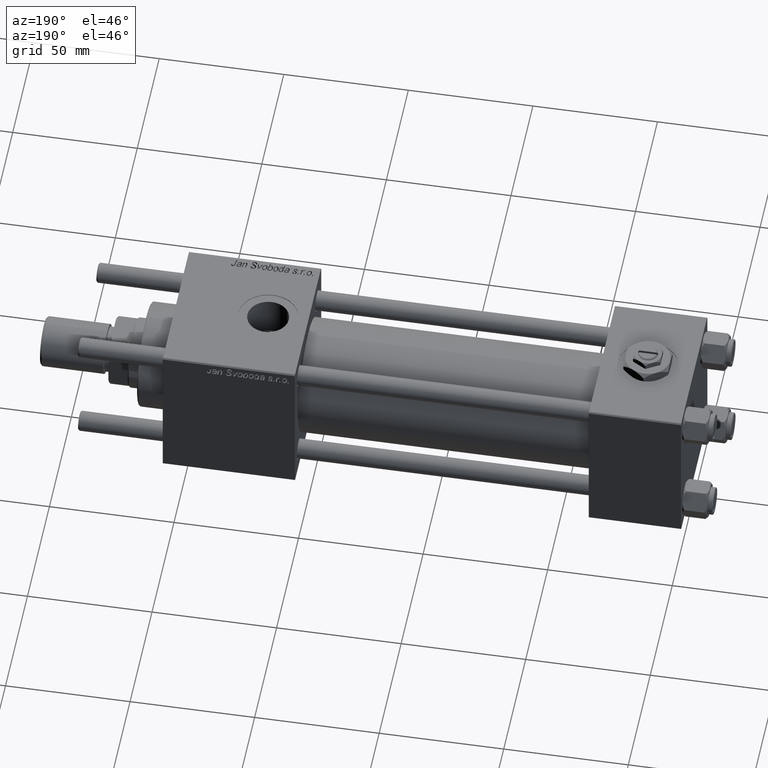
[diagram: clean part render]
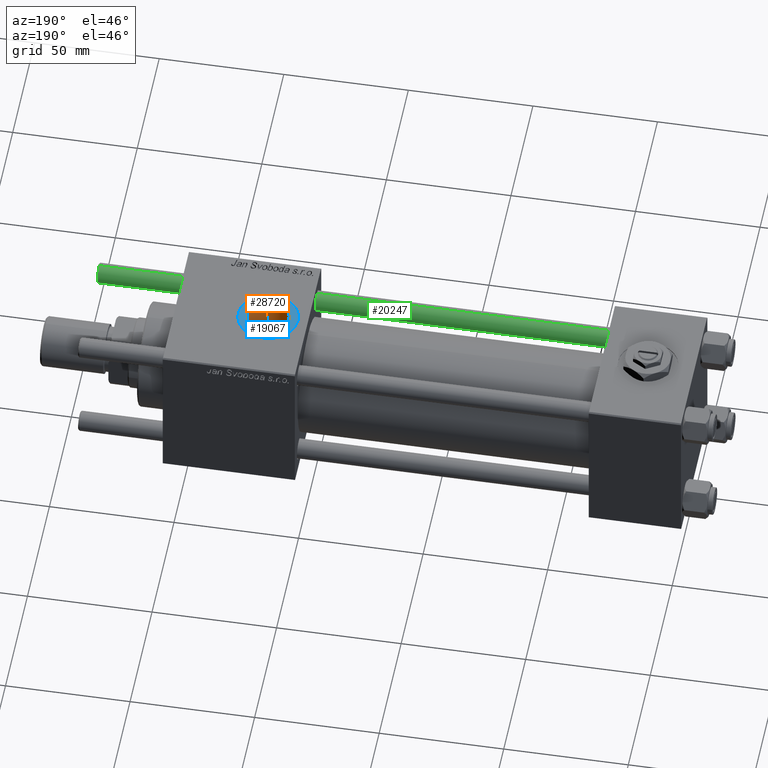
[diagram: same view with three faces highlighted in distinct colors, each labeled with its STEP entity id]
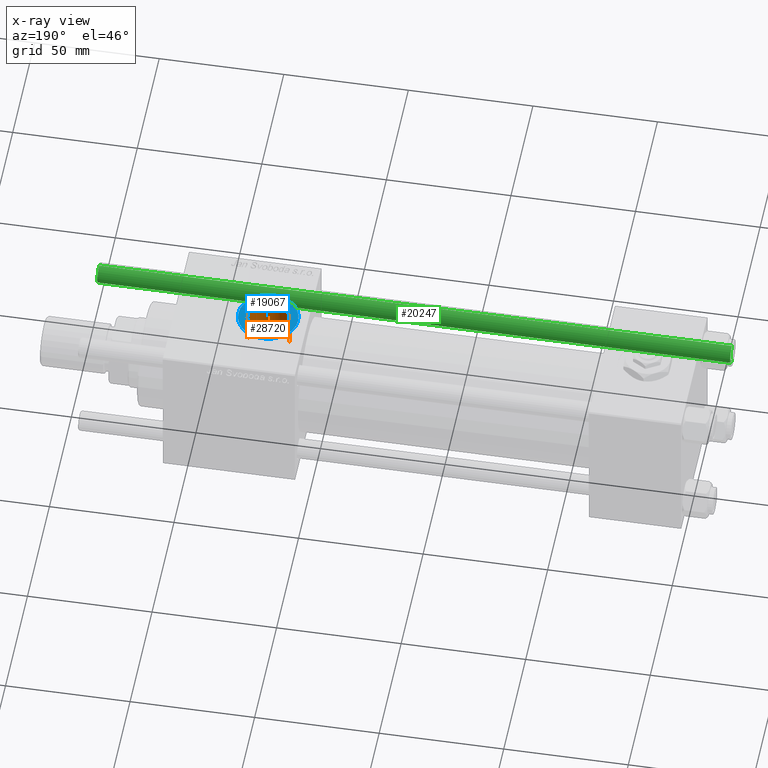
[diagram: x-ray of the same camera — body ghosted, the three highlighted faces saturated]
A machine part, auxiliary view with three faces highlighted in distinct colors.
The next image is the same camera in x-ray (body ghosted, the three faces saturated) — at least one of them is partly hidden behind the body in this view.
Their STEP definitions:

[orange] entity #28720 — the highlighted cylindrical surface (edge-blend (fillet) strip) has radius 8.33 mm, axis along (0, 0, -1).
#763 = EDGE_CURVE ( 'NONE', #18069, #15996, #35019, .T. ) ;
#1313 = EDGE_CURVE ( 'NONE', #13149, #13876, #21421, .T. ) ;
#1381 = CARTESIAN_POINT ( 'NONE',  ( 165.1064272110298816, -5.898864207807588578, 14.33631558793831928 ) ) ;
#1679 = CARTESIAN_POINT ( 'NONE',  ( 163.7356139241942401, -4.094008462183722941, 14.95330218343579709 ) ) ;
#2582 = CARTESIAN_POINT ( 'NONE',  ( 162.8089720379881555, -1.564748737126392397, 15.42568822226018810 ) ) ;
#3598 = CARTESIAN_POINT ( 'NONE',  ( 178.7215032992639578, -3.145651711574434461, 15.18130506059518581 ) ) ;
#3682 = ORIENTED_EDGE ( 'NONE', *, *, #763, .T. ) ;
#4117 = DIRECTION ( 'NONE',  ( 0.000000000000000000, 0.000000000000000000, -1.000000000000000000 ) ) ;
#4184 = CARTESIAN_POINT ( 'NONE',  ( 175.3773959923153427, -7.095733675622464709, 13.78217589145791599 ) ) ;
#4963 = CARTESIAN_POINT ( 'NONE',  ( 170.9999999999999716, -3.469446951953613794E-15, 13.59999999999999076 ) ) ;
#5894 = CARTESIAN_POINT ( 'NONE',  ( 165.9411433775952673, -6.660665606237817116, 14.00684504084868109 ) ) ;
#6303 = CARTESIAN_POINT ( 'NONE',  ( 179.2999999999999829, -0.7063285354563793028, 22.48891060056044822 ) ) ;
#6874 = CARTESIAN_POINT ( 'NONE',  ( 179.3299999999999841, 2.755455270027974659E-15, 22.50000000000000355 ) ) ;
#6912 = B_SPLINE_CURVE_WITH_KNOTS ( 'NONE', 3,
 ( #10812, #29114, #47419, #6303 ),
 .UNSPECIFIED., .F., .F.,
 ( 4, 4 ),
 ( 0.0007063285354563697722, 0.001412657070912751688 ),
 .UNSPECIFIED. ) ;
#8626 = FACE_OUTER_BOUND ( 'NONE', #59013, .T. ) ;
#8693 = CARTESIAN_POINT ( 'NONE',  ( 175.9563515716284314, -6.704148802593592471, 13.97684504926377791 ) ) ;
#10398 = CARTESIAN_POINT ( 'NONE',  ( 167.2451498032544634, -7.435724578008537478, 13.59999999999999076 ) ) ;
#10812 = CARTESIAN_POINT ( 'NONE',  ( 179.3299999999999841, 2.755455270027974659E-15, 22.50000000000000355 ) ) ;
#11345 = AXIS2_PLACEMENT_3D ( 'NONE', #4963, #50876, #19656 ) ;
#11403 = CARTESIAN_POINT ( 'NONE',  ( 179.3299999999999841, -2.449316168263869821E-15, 29.79999999999999716 ) ) ;
#11814 = AXIS2_PLACEMENT_3D ( 'NONE', #35283, #30184, #52976 ) ;
#11841 = CARTESIAN_POINT ( 'NONE',  ( 162.6699999999999875, -3.469446951953613794E-15, 52.79999999999999716 ) ) ;
#12482 = CARTESIAN_POINT ( 'NONE',  ( 162.8906515532532353, -1.943315834972986433, 15.38227098439063845 ) ) ;
#12606 = EDGE_CURVE ( 'NONE', #13876, #57425, #39157, .T. ) ;
#13149 = VERTEX_POINT ( 'NONE', #11403 ) ;
#13834 = LINE ( 'NONE', #39306, #23711 ) ;
#13876 = VERTEX_POINT ( 'NONE', #21088 ) ;
#14393 = ORIENTED_EDGE ( 'NONE', *, *, #45615, .T. ) ;
#15156 = CIRCLE ( 'NONE', #11345, 8.330000000000003624 ) ;
#15205 = CARTESIAN_POINT ( 'NONE',  ( 164.8421395764249553, -5.622509492967806999, 14.44759832893447715 ) ) ;
#15798 = CARTESIAN_POINT ( 'NONE',  ( 162.6699999999999307, -0.3932737753490411214, 15.50000000000000000 ) ) ;
#15996 = VERTEX_POINT ( 'NONE', #27949 ) ;
#16242 = ORIENTED_EDGE ( 'NONE', *, *, #1313, .F. ) ;
#17413 = CARTESIAN_POINT ( 'NONE',  ( 179.2379181272461039, -1.435846766692447929, 15.45061967576079809 ) ) ;
#17995 = CARTESIAN_POINT ( 'NONE',  ( 177.6814859054846067, -4.986894924185134137, 14.67899340481596582 ) ) ;
#18069 = VERTEX_POINT ( 'NONE', #40026 ) ;
#19656 = DIRECTION ( 'NONE',  ( 1.000000000000000000, 0.000000000000000000, 0.000000000000000000 ) ) ;
#20257 = VERTEX_POINT ( 'NONE', #42424 ) ;
#20283 = CARTESIAN_POINT ( 'NONE',  ( 162.6985123997139908, -0.7916320528489063646, 15.48462509825850653 ) ) ;
#21088 = CARTESIAN_POINT ( 'NONE',  ( 162.6699999999999875, -3.469446951953613794E-15, 29.79999999999999716 ) ) ;
#21421 = CIRCLE ( 'NONE', #11814, 8.330000000000003624 ) ;
#21614 = CARTESIAN_POINT ( 'NONE',  ( 176.7527035097906776, -6.034536163537520537, 14.27924648151578069 ) ) ;
#23711 = VECTOR ( 'NONE', #43205, 1000.000000000000000 ) ;
#24529 = AXIS2_PLACEMENT_3D ( 'NONE', #45238, #4117, #36524 ) ;
#26405 = CARTESIAN_POINT ( 'NONE',  ( 179.0832175232424675, -2.135847849507347185, 15.36739229984356037 ) ) ;
#26841 = B_SPLINE_CURVE_WITH_KNOTS ( 'NONE', 3,
 ( #10398, #28707, #5894, #1381, #15205, #33502, #51794, #1679, #38298, #34398, #53289, #12482, #2582, #20283, #15798, #52386 ),
 .UNSPECIFIED., .F., .F.,
 ( 4, 2, 2, 2, 2, 2, 2, 4 ),
 ( 3.218601655210948285E-17, 0.002343612196725074290, 0.003515418295087595173, 0.004687224393450115621, 0.005859030491812635202, 0.007030836590175156518, 0.008202642688537676099, 0.009374448786900198283 ),
 .UNSPECIFIED. ) ;
#26926 = CYLINDRICAL_SURFACE ( 'NONE', #24529, 8.330000000000003624 ) ;
#27949 = CARTESIAN_POINT ( 'NONE',  ( 174.7548501967455081, -7.435724578008537478, 13.59999999999999076 ) ) ;
#28623 = VERTEX_POINT ( 'NONE', #43751 ) ;
#28707 = CARTESIAN_POINT ( 'NONE',  ( 166.5580543014319517, -7.088758972554064286, 13.78970152060304066 ) ) ;
#28720 = ADVANCED_FACE ( 'NONE', ( #8626 ), #26926, .F. ) ;
#29114 = CARTESIAN_POINT ( 'NONE',  ( 179.3299999999999841, -0.2354428451521246024, 22.50000000000000355 ) ) ;
#30184 = DIRECTION ( 'NONE',  ( -0.000000000000000000, -0.000000000000000000, -1.000000000000000000 ) ) ;
#30622 = CARTESIAN_POINT ( 'NONE',  ( 176.2310764146981512, -6.491922975836087240, 14.07719584522196321 ) ) ;
#31057 = ORIENTED_EDGE ( 'NONE', *, *, #48412, .T. ) ;
#31208 = CARTESIAN_POINT ( 'NONE',  ( 174.7548501967455081, -7.435724578008537478, 13.59999999999999076 ) ) ;
#32147 = LINE ( 'NONE', #42310, #56257 ) ;
#32158 = ORIENTED_EDGE ( 'NONE', *, *, #44593, .T. ) ;
#33502 = CARTESIAN_POINT ( 'NONE',  ( 164.3580999100944382, -5.041529647880452991, 14.66044642165735468 ) ) ;
#34398 = CARTESIAN_POINT ( 'NONE',  ( 163.2388751121312396, -3.050237885181524611, 15.20123122413416006 ) ) ;
#35019 = B_SPLINE_CURVE_WITH_KNOTS ( 'NONE', 3,
 ( #45008, #17413, #26405, #3598, #44422, #41084, #59084, #17995, #39922, #58218, #21614, #30622, #8693, #4184, #35420, #31208 ),
 .UNSPECIFIED., .F., .F.,
 ( 4, 2, 2, 2, 2, 2, 2, 4 ),
 ( 0.000000000000000000, 0.002164281519507940243, 0.003246422279261909280, 0.004328563039015877884, 0.005410703798769845620, 0.006492844558523814223, 0.007574985318277782827, 0.008657126078031750563 ),
 .UNSPECIFIED. ) ;
#35283 = CARTESIAN_POINT ( 'NONE',  ( 170.9999999999999716, -3.469446951953613794E-15, 29.79999999999999716 ) ) ;
#35420 = CARTESIAN_POINT ( 'NONE',  ( 175.0719793388102232, -7.275582495151255102, 13.68755679569671457 ) ) ;
#35733 = EDGE_CURVE ( 'NONE', #20257, #15996, #15156, .T. ) ;
#36524 = DIRECTION ( 'NONE',  ( -1.000000000000000000, 0.000000000000000000, 0.000000000000000000 ) ) ;
#38019 = ORIENTED_EDGE ( 'NONE', *, *, #35733, .F. ) ;
#38298 = CARTESIAN_POINT ( 'NONE',  ( 163.5555123538904922, -3.757474466741723251, 15.04203335714862710 ) ) ;
#39157 = LINE ( 'NONE', #11841, #44270 ) ;
#39306 = CARTESIAN_POINT ( 'NONE',  ( 179.3299999999999841, -2.449316168263869032E-15, 52.79999999999999716 ) ) ;
#39922 = CARTESIAN_POINT ( 'NONE',  ( 177.4654438345357335, -5.264046141786857369, 14.58145607373055164 ) ) ;
#40026 = CARTESIAN_POINT ( 'NONE',  ( 179.2999999999999829, -0.7063285354563793028, 15.48389808801388412 ) ) ;
#41084 = CARTESIAN_POINT ( 'NONE',  ( 178.2557022334253816, -4.107191428842593695, 14.94947048340131346 ) ) ;
#42310 = CARTESIAN_POINT ( 'NONE',  ( 179.2999999999999829, -0.7063285354563793028, 52.79999999999999716 ) ) ;
#42424 = CARTESIAN_POINT ( 'NONE',  ( 167.2451498032544634, -7.435724578008537478, 13.59999999999999076 ) ) ;
#43205 = DIRECTION ( 'NONE',  ( 0.000000000000000000, 0.000000000000000000, -1.000000000000000000 ) ) ;
#43751 = CARTESIAN_POINT ( 'NONE',  ( 179.2999999999999829, -0.7063285354563793028, 22.48891060056044822 ) ) ;
#44226 = ORIENTED_EDGE ( 'NONE', *, *, #12606, .F. ) ;
#44256 = DIRECTION ( 'NONE',  ( 0.000000000000000000, 0.000000000000000000, -1.000000000000000000 ) ) ;
#44270 = VECTOR ( 'NONE', #44256, 1000.000000000000000 ) ;
#44422 = CARTESIAN_POINT ( 'NONE',  ( 178.5780231920916492, -3.476751477085000541, 15.10853693558157040 ) ) ;
#44593 = EDGE_CURVE ( 'NONE', #13149, #48869, #13834, .T. ) ;
#45008 = CARTESIAN_POINT ( 'NONE',  ( 179.2999999999999829, -0.7063285354563793028, 15.48389808801388412 ) ) ;
#45238 = CARTESIAN_POINT ( 'NONE',  ( 170.9999999999999716, -3.469446951953613794E-15, 52.79999999999999716 ) ) ;
#45391 = EDGE_CURVE ( 'NONE', #18069, #28623, #32147, .T. ) ;
#45615 = EDGE_CURVE ( 'NONE', #48869, #28623, #6912, .T. ) ;
#45947 = DIRECTION ( 'NONE',  ( -0.000000000000000000, -0.000000000000000000, 1.000000000000000000 ) ) ;
#47419 = CARTESIAN_POINT ( 'NONE',  ( 179.3200361445782960, -0.4708856903042520914, 22.49630535626710781 ) ) ;
#48412 = EDGE_CURVE ( 'NONE', #20257, #57425, #26841, .T. ) ;
#48869 = VERTEX_POINT ( 'NONE', #6874 ) ;
#50876 = DIRECTION ( 'NONE',  ( 0.000000000000000000, 0.000000000000000000, 1.000000000000000000 ) ) ;
#51794 = CARTESIAN_POINT ( 'NONE',  ( 164.1369027071220614, -4.736043274220088861, 14.76252165391442439 ) ) ;
#52227 = ORIENTED_EDGE ( 'NONE', *, *, #45391, .F. ) ;
#52386 = CARTESIAN_POINT ( 'NONE',  ( 162.6699999999996180, -2.713082222898955649E-14, 15.50000000000020428 ) ) ;
#52976 = DIRECTION ( 'NONE',  ( 1.000000000000000000, 0.000000000000000000, 0.000000000000000000 ) ) ;
#53289 = CARTESIAN_POINT ( 'NONE',  ( 163.1052114789570169, -2.685204437881583583, 15.27024604249924877 ) ) ;
#56257 = VECTOR ( 'NONE', #45947, 1000.000000000000000 ) ;
#57425 = VERTEX_POINT ( 'NONE', #59371 ) ;
#58218 = CARTESIAN_POINT ( 'NONE',  ( 176.9996026483515834, -5.789379398717165337, 14.38096412590978090 ) ) ;
#59013 = EDGE_LOOP ( 'NONE', ( #16242, #32158, #14393, #52227, #3682, #38019, #31057, #44226 ) ) ;
#59084 = CARTESIAN_POINT ( 'NONE',  ( 178.0762267006179513, -4.408899020335364405, 14.86282536370456953 ) ) ;
#59371 = CARTESIAN_POINT ( 'NONE',  ( 162.6699999999996180, -2.713082222898955649E-14, 15.50000000000020428 ) ) ;

[blue] entity #19067 — the highlighted planar face has unit normal (0, 0, 1).
#335 = ORIENTED_EDGE ( 'NONE', *, *, #23582, .T. ) ;
#1313 = EDGE_CURVE ( 'NONE', #13149, #13876, #21421, .T. ) ;
#1326 = ORIENTED_EDGE ( 'NONE', *, *, #48843, .T. ) ;
#3179 = VERTEX_POINT ( 'NONE', #37180 ) ;
#3708 = FACE_BOUND ( 'NONE', #55635, .T. ) ;
#4089 = ORIENTED_EDGE ( 'NONE', *, *, #1313, .T. ) ;
#5034 = EDGE_CURVE ( 'NONE', #47907, #3179, #23902, .T. ) ;
#5083 = DIRECTION ( 'NONE',  ( 1.000000000000000000, 0.000000000000000000, 0.000000000000000000 ) ) ;
#7175 = CARTESIAN_POINT ( 'NONE',  ( 170.9999999999999716, -3.469446951953613794E-15, 29.79999999999999716 ) ) ;
#9295 = DIRECTION ( 'NONE',  ( 0.000000000000000000, 0.000000000000000000, 1.000000000000000000 ) ) ;
#9349 = ORIENTED_EDGE ( 'NONE', *, *, #5034, .T. ) ;
#11403 = CARTESIAN_POINT ( 'NONE',  ( 179.3299999999999841, -2.449316168263869821E-15, 29.79999999999999716 ) ) ;
#11814 = AXIS2_PLACEMENT_3D ( 'NONE', #35283, #30184, #52976 ) ;
#12427 = DIRECTION ( 'NONE',  ( 1.000000000000000000, 0.000000000000000000, -0.000000000000000000 ) ) ;
#13149 = VERTEX_POINT ( 'NONE', #11403 ) ;
#13469 = DIRECTION ( 'NONE',  ( 1.000000000000000000, 0.000000000000000000, 0.000000000000000000 ) ) ;
#13844 = CARTESIAN_POINT ( 'NONE',  ( 158.9999999999999716, -1.999870792976789650E-15, 29.79999999999999716 ) ) ;
#13876 = VERTEX_POINT ( 'NONE', #21088 ) ;
#17504 = EDGE_LOOP ( 'NONE', ( #1326, #9349 ) ) ;
#19067 = ADVANCED_FACE ( 'NONE', ( #3708, #48740 ), #44242, .T. ) ;
#20669 = DIRECTION ( 'NONE',  ( 0.000000000000000000, 0.000000000000000000, 1.000000000000000000 ) ) ;
#21088 = CARTESIAN_POINT ( 'NONE',  ( 162.6699999999999875, -3.469446951953613794E-15, 29.79999999999999716 ) ) ;
#21421 = CIRCLE ( 'NONE', #11814, 8.330000000000003624 ) ;
#23582 = EDGE_CURVE ( 'NONE', #13876, #13149, #39719, .T. ) ;
#23902 = CIRCLE ( 'NONE', #31584, 12.00000000000001066 ) ;
#26519 = CARTESIAN_POINT ( 'NONE',  ( 170.9999999999999716, -3.469446951953613794E-15, 29.79999999999999716 ) ) ;
#30184 = DIRECTION ( 'NONE',  ( -0.000000000000000000, -0.000000000000000000, -1.000000000000000000 ) ) ;
#31584 = AXIS2_PLACEMENT_3D ( 'NONE', #7175, #20669, #52166 ) ;
#32015 = AXIS2_PLACEMENT_3D ( 'NONE', #26519, #53826, #12427 ) ;
#35283 = CARTESIAN_POINT ( 'NONE',  ( 170.9999999999999716, -3.469446951953613794E-15, 29.79999999999999716 ) ) ;
#36270 = CARTESIAN_POINT ( 'NONE',  ( 170.9999999999999716, -3.469446951953613794E-15, 29.79999999999999716 ) ) ;
#37180 = CARTESIAN_POINT ( 'NONE',  ( 183.0000000000000000, -3.469446951953613794E-15, 29.79999999999999716 ) ) ;
#37775 = AXIS2_PLACEMENT_3D ( 'NONE', #36270, #54555, #13469 ) ;
#39719 = CIRCLE ( 'NONE', #37775, 8.330000000000003624 ) ;
#44242 = PLANE ( 'NONE',  #32015 ) ;
#47665 = CIRCLE ( 'NONE', #55312, 12.00000000000001066 ) ;
#47907 = VERTEX_POINT ( 'NONE', #13844 ) ;
#48740 = FACE_OUTER_BOUND ( 'NONE', #17504, .T. ) ;
#48843 = EDGE_CURVE ( 'NONE', #3179, #47907, #47665, .T. ) ;
#50403 = CARTESIAN_POINT ( 'NONE',  ( 170.9999999999999716, -3.469446951953613794E-15, 29.79999999999999716 ) ) ;
#52166 = DIRECTION ( 'NONE',  ( 1.000000000000000000, 0.000000000000000000, 0.000000000000000000 ) ) ;
#52976 = DIRECTION ( 'NONE',  ( 1.000000000000000000, 0.000000000000000000, 0.000000000000000000 ) ) ;
#53826 = DIRECTION ( 'NONE',  ( 0.000000000000000000, 0.000000000000000000, 1.000000000000000000 ) ) ;
#54555 = DIRECTION ( 'NONE',  ( -0.000000000000000000, -0.000000000000000000, -1.000000000000000000 ) ) ;
#55312 = AXIS2_PLACEMENT_3D ( 'NONE', #50403, #9295, #5083 ) ;
#55635 = EDGE_LOOP ( 'NONE', ( #335, #4089 ) ) ;

[green] entity #20247 — the highlighted cylindrical surface (edge-blend (fillet) strip) has radius 4 mm, axis along (-1, 0, -0).
#722 = DIRECTION ( 'NONE',  ( -1.000000000000000000, 0.000000000000000000, 0.000000000000000000 ) ) ;
#2529 = EDGE_LOOP ( 'NONE', ( #56534, #53137, #38567, #28857 ) ) ;
#4537 = CARTESIAN_POINT ( 'NONE',  ( -4.000000000000000000, 0.000000000000000000, 255.0000000000000000 ) ) ;
#4609 = CIRCLE ( 'NONE', #54421, 4.000000000000000000 ) ;
#6319 = VECTOR ( 'NONE', #16113, 1000.000000000000000 ) ;
#7406 = CARTESIAN_POINT ( 'NONE',  ( 4.000000000000000000, 4.898587196589412829E-16, 255.0000000000000000 ) ) ;
#9214 = CARTESIAN_POINT ( 'NONE',  ( 4.000000000000000000, 4.898587196589412829E-16, 254.4999999999999432 ) ) ;
#11263 = VECTOR ( 'NONE', #12960, 1000.000000000000000 ) ;
#11577 = VERTEX_POINT ( 'NONE', #47846 ) ;
#11783 = DIRECTION ( 'NONE',  ( 1.000000000000000000, 0.000000000000000000, 0.000000000000000000 ) ) ;
#12193 = LINE ( 'NONE', #7406, #6319 ) ;
#12960 = DIRECTION ( 'NONE',  ( -0.000000000000000000, -0.000000000000000000, -1.000000000000000000 ) ) ;
#14251 = CYLINDRICAL_SURFACE ( 'NONE', #22452, 4.000000000000000000 ) ;
#15428 = CARTESIAN_POINT ( 'NONE',  ( 0.000000000000000000, 0.000000000000000000, 255.0000000000000000 ) ) ;
#16113 = DIRECTION ( 'NONE',  ( -0.000000000000000000, -0.000000000000000000, -1.000000000000000000 ) ) ;
#16246 = DIRECTION ( 'NONE',  ( 1.000000000000000000, 0.000000000000000000, 0.000000000000000000 ) ) ;
#20247 = ADVANCED_FACE ( 'NONE', ( #23246 ), #14251, .T. ) ;
#21092 = DIRECTION ( 'NONE',  ( 0.000000000000000000, 0.000000000000000000, -1.000000000000000000 ) ) ;
#21848 = CIRCLE ( 'NONE', #48657, 4.000000000000000000 ) ;
#22452 = AXIS2_PLACEMENT_3D ( 'NONE', #15428, #46645, #722 ) ;
#23246 = FACE_OUTER_BOUND ( 'NONE', #2529, .T. ) ;
#28857 = ORIENTED_EDGE ( 'NONE', *, *, #34869, .T. ) ;
#29751 = CARTESIAN_POINT ( 'NONE',  ( 0.000000000000000000, 0.000000000000000000, 0.5000000000000559552 ) ) ;
#31270 = LINE ( 'NONE', #4537, #11263 ) ;
#33902 = VERTEX_POINT ( 'NONE', #9214 ) ;
#34849 = CARTESIAN_POINT ( 'NONE',  ( -4.000000000000000000, 0.000000000000000000, 0.5000000000000559552 ) ) ;
#34869 = EDGE_CURVE ( 'NONE', #34956, #50025, #21848, .T. ) ;
#34956 = VERTEX_POINT ( 'NONE', #34849 ) ;
#35024 = CARTESIAN_POINT ( 'NONE',  ( 4.000000000000000000, 4.898587196589412829E-16, 0.5000000000000559552 ) ) ;
#38491 = CARTESIAN_POINT ( 'NONE',  ( 0.000000000000000000, 0.000000000000000000, 254.4999999999999432 ) ) ;
#38567 = ORIENTED_EDGE ( 'NONE', *, *, #45183, .T. ) ;
#38744 = DIRECTION ( 'NONE',  ( -0.000000000000000000, -0.000000000000000000, 1.000000000000000000 ) ) ;
#40780 = EDGE_CURVE ( 'NONE', #33902, #50025, #12193, .T. ) ;
#45183 = EDGE_CURVE ( 'NONE', #11577, #34956, #31270, .T. ) ;
#46645 = DIRECTION ( 'NONE',  ( -0.000000000000000000, -0.000000000000000000, -1.000000000000000000 ) ) ;
#47846 = CARTESIAN_POINT ( 'NONE',  ( -4.000000000000000000, 0.000000000000000000, 254.4999999999999432 ) ) ;
#48657 = AXIS2_PLACEMENT_3D ( 'NONE', #29751, #38744, #16246 ) ;
#50025 = VERTEX_POINT ( 'NONE', #35024 ) ;
#52189 = EDGE_CURVE ( 'NONE', #33902, #11577, #4609, .T. ) ;
#53137 = ORIENTED_EDGE ( 'NONE', *, *, #52189, .T. ) ;
#54421 = AXIS2_PLACEMENT_3D ( 'NONE', #38491, #21092, #11783 ) ;
#56534 = ORIENTED_EDGE ( 'NONE', *, *, #40780, .F. ) ;